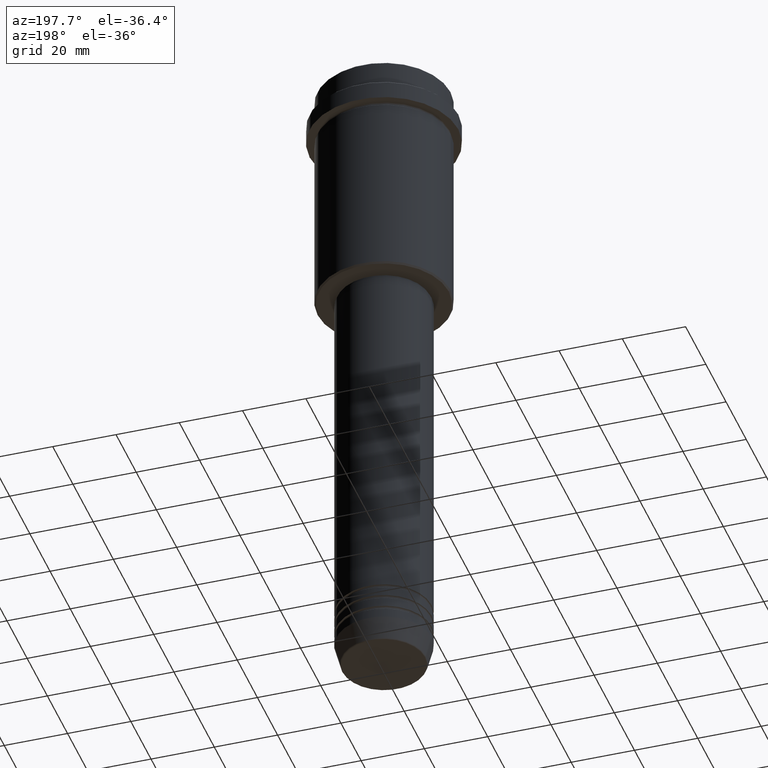
[diagram: clean part render]
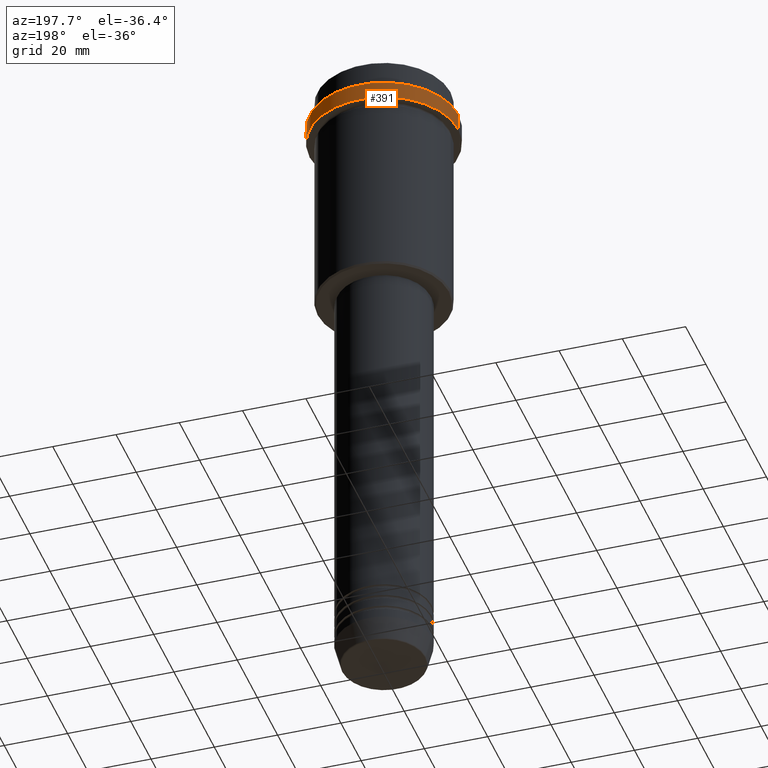
[diagram: same view with one face highlighted and labeled with its STEP entity id]
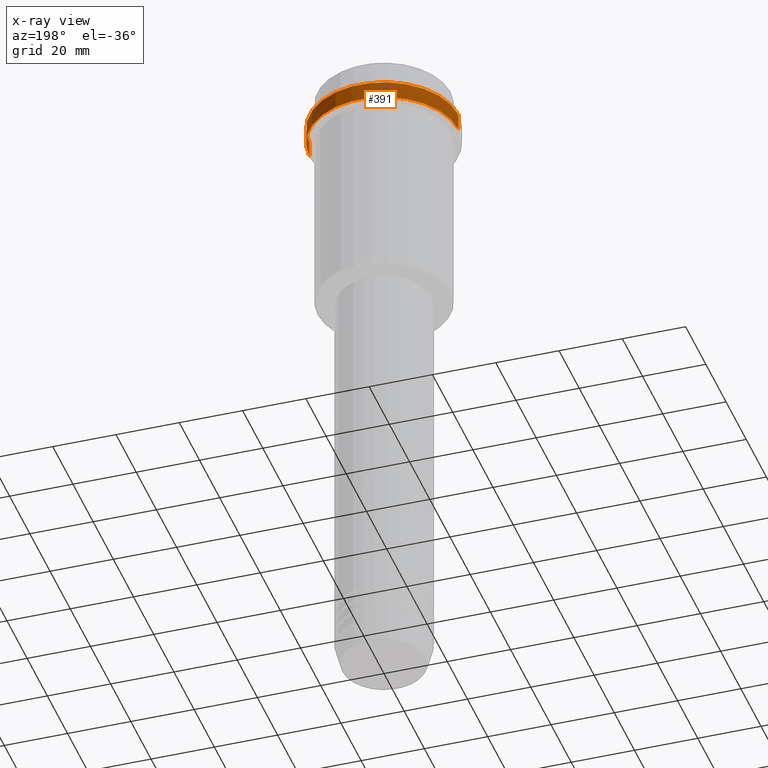
[diagram: x-ray of the same camera — body ghosted, the highlighted face saturated]
A machine part, auxiliary view. The second image highlights one B-rep face of the part: STEP entity #391.
The next image is the same camera in x-ray: the body ghosted, the highlighted face saturated — about 0% of this face is hidden behind the body in this view.
In plain terms, the highlighted cylindrical surface (partial cylindrical patch) has radius 23.5 mm, axis along (-0, -0, 1).
Its self-contained STEP definition (entity closure, byte-faithful):
#27 = CARTESIAN_POINT ( 'NONE',  ( 23.50000000000000000, 0.000000000000000000, -9.499999999999971578 ) ) ;
#75 = EDGE_CURVE ( 'NONE', #1392, #386, #626, .T. ) ;
#105 = VECTOR ( 'NONE', #1275, 1000.000000000000000 ) ;
#165 = CARTESIAN_POINT ( 'NONE',  ( -23.50000000000000000, 2.877919977996280320E-15, -9.499999999999971578 ) ) ;
#173 = AXIS2_PLACEMENT_3D ( 'NONE', #592, #582, #276 ) ;
#178 = ORIENTED_EDGE ( 'NONE', *, *, #75, .F. ) ;
#256 = CYLINDRICAL_SURFACE ( 'NONE', #173, 23.50000000000000000 ) ;
#276 = DIRECTION ( 'NONE',  ( 1.000000000000000000, 0.000000000000000000, 0.000000000000000000 ) ) ;
#277 = VERTEX_POINT ( 'NONE', #1004 ) ;
#298 = DIRECTION ( 'NONE',  ( 0.000000000000000000, 0.000000000000000000, -1.000000000000000000 ) ) ;
#340 = CARTESIAN_POINT ( 'NONE',  ( 0.000000000000000000, 0.000000000000000000, -15.00000000000000000 ) ) ;
#386 = VERTEX_POINT ( 'NONE', #27 ) ;
#391 = ADVANCED_FACE ( 'NONE', ( #699 ), #256, .T. ) ;
#417 = CARTESIAN_POINT ( 'NONE',  ( 23.50000000000000355, 0.000000000000000000, -15.00000000000000000 ) ) ;
#485 = ORIENTED_EDGE ( 'NONE', *, *, #948, .T. ) ;
#555 = EDGE_CURVE ( 'NONE', #277, #1349, #1370, .T. ) ;
#582 = DIRECTION ( 'NONE',  ( -0.000000000000000000, -0.000000000000000000, 1.000000000000000000 ) ) ;
#592 = CARTESIAN_POINT ( 'NONE',  ( 0.000000000000000000, 0.000000000000000000, 0.000000000000000000 ) ) ;
#626 = LINE ( 'NONE', #955, #105 ) ;
#663 = CIRCLE ( 'NONE', #1034, 23.50000000000000355 ) ;
#699 = FACE_OUTER_BOUND ( 'NONE', #921, .T. ) ;
#770 = DIRECTION ( 'NONE',  ( 1.000000000000000000, 0.000000000000000000, 0.000000000000000000 ) ) ;
#857 = ORIENTED_EDGE ( 'NONE', *, *, #1212, .T. ) ;
#921 = EDGE_LOOP ( 'NONE', ( #857, #933, #485, #178 ) ) ;
#924 = DIRECTION ( 'NONE',  ( -0.000000000000000000, -0.000000000000000000, 1.000000000000000000 ) ) ;
#933 = ORIENTED_EDGE ( 'NONE', *, *, #555, .T. ) ;
#941 = VECTOR ( 'NONE', #1304, 1000.000000000000000 ) ;
#948 = EDGE_CURVE ( 'NONE', #1349, #386, #967, .T. ) ;
#955 = CARTESIAN_POINT ( 'NONE',  ( 23.50000000000000000, 0.000000000000000000, 0.000000000000000000 ) ) ;
#967 = CIRCLE ( 'NONE', #1057, 23.50000000000000000 ) ;
#1004 = CARTESIAN_POINT ( 'NONE',  ( -23.50000000000000711, 2.877919977996281109E-15, -15.00000000000000000 ) ) ;
#1034 = AXIS2_PLACEMENT_3D ( 'NONE', #340, #924, #770 ) ;
#1057 = AXIS2_PLACEMENT_3D ( 'NONE', #1279, #298, #1128 ) ;
#1128 = DIRECTION ( 'NONE',  ( 1.000000000000000000, 0.000000000000000000, 0.000000000000000000 ) ) ;
#1182 = CARTESIAN_POINT ( 'NONE',  ( -23.50000000000000000, 2.877919977996280320E-15, 0.000000000000000000 ) ) ;
#1212 = EDGE_CURVE ( 'NONE', #1392, #277, #663, .T. ) ;
#1275 = DIRECTION ( 'NONE',  ( -0.000000000000000000, -0.000000000000000000, 1.000000000000000000 ) ) ;
#1279 = CARTESIAN_POINT ( 'NONE',  ( 0.000000000000000000, 0.000000000000000000, -9.499999999999971578 ) ) ;
#1304 = DIRECTION ( 'NONE',  ( -0.000000000000000000, -0.000000000000000000, 1.000000000000000000 ) ) ;
#1349 = VERTEX_POINT ( 'NONE', #165 ) ;
#1370 = LINE ( 'NONE', #1182, #941 ) ;
#1392 = VERTEX_POINT ( 'NONE', #417 ) ;